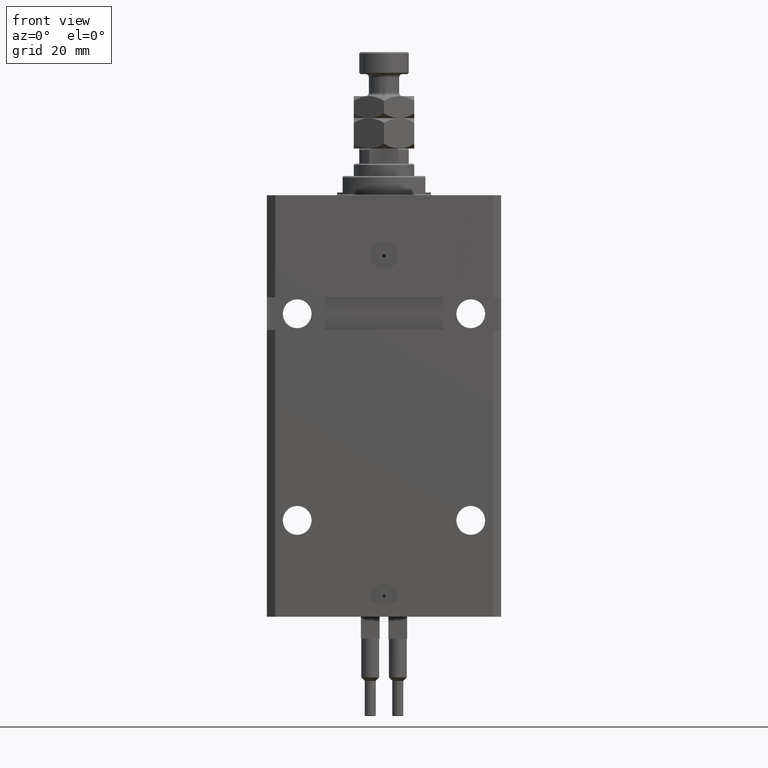
[diagram: clean part render]
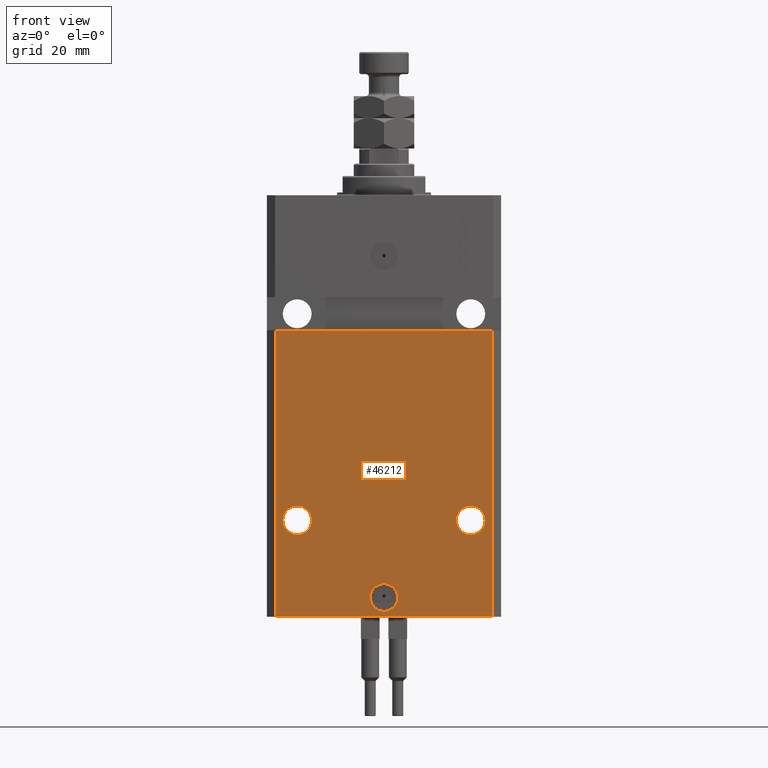
[diagram: same view with one face highlighted and labeled with its STEP entity id]
A machine part, front view. The second image highlights one B-rep face of the part: STEP entity #46212.
In plain terms, the highlighted planar face has unit normal (0, -1, 0).
Its self-contained STEP definition (entity closure, byte-faithful):
#1025 = EDGE_CURVE ( 'NONE', #14641, #39030, #32568, .T. ) ;
#1594 = CIRCLE ( 'NONE', #29347, 5.249999999999997335 ) ;
#1829 = CARTESIAN_POINT ( 'NONE',  ( -26.25000000000001776, -31.50000000000000711, -118.0000000000000000 ) ) ;
#2555 = CARTESIAN_POINT ( 'NONE',  ( -36.75000000000001421, -31.50000000000000711, -118.0000000000000000 ) ) ;
#3582 = FACE_BOUND ( 'NONE', #27794, .T. ) ;
#3829 = DIRECTION ( 'NONE',  ( 0.000000000000000000, -0.000000000000000000, -1.000000000000000000 ) ) ;
#4486 = DIRECTION ( 'NONE',  ( 1.176083712526788232E-16, -1.000000000000000000, 0.000000000000000000 ) ) ;
#4741 = DIRECTION ( 'NONE',  ( -1.000000000000000000, 0.000000000000000000, 0.000000000000000000 ) ) ;
#4793 = EDGE_CURVE ( 'NONE', #38110, #41681, #39795, .T. ) ;
#5434 = DIRECTION ( 'NONE',  ( 1.000000000000000000, 1.632680918566406054E-16, 1.632680918566406054E-16 ) ) ;
#5849 = EDGE_CURVE ( 'NONE', #21984, #23379, #1594, .T. ) ;
#6730 = CIRCLE ( 'NONE', #41842, 5.249999999999997335 ) ;
#7109 = EDGE_CURVE ( 'NONE', #23379, #21984, #7350, .T. ) ;
#7350 = CIRCLE ( 'NONE', #32637, 5.249999999999997335 ) ;
#7641 = ORIENTED_EDGE ( 'NONE', *, *, #1025, .F. ) ;
#7666 = CARTESIAN_POINT ( 'NONE',  ( -39.50000000000000711, -31.50000000000000000, -153.0000000000000000 ) ) ;
#9051 = AXIS2_PLACEMENT_3D ( 'NONE', #7666, #23230, #3829 ) ;
#9541 = VERTEX_POINT ( 'NONE', #15414 ) ;
#10438 = VERTEX_POINT ( 'NONE', #46143 ) ;
#12653 = VECTOR ( 'NONE', #14240, 1000.000000000000000 ) ;
#12969 = CARTESIAN_POINT ( 'NONE',  ( -31.50000000000001421, -31.50000000000000711, -118.0000000000000000 ) ) ;
#13236 = AXIS2_PLACEMENT_3D ( 'NONE', #40712, #32528, #36367 ) ;
#13747 = CARTESIAN_POINT ( 'NONE',  ( -39.50000000000000711, -31.50000000000000000, -153.0000000000000000 ) ) ;
#14240 = DIRECTION ( 'NONE',  ( 1.000000000000000000, 0.000000000000000000, 0.000000000000000000 ) ) ;
#14641 = VERTEX_POINT ( 'NONE', #2555 ) ;
#14895 = DIRECTION ( 'NONE',  ( 0.000000000000000000, 0.000000000000000000, 1.000000000000000000 ) ) ;
#15414 = CARTESIAN_POINT ( 'NONE',  ( 39.50000000000000711, -31.50000000000000000, -153.0000000000000000 ) ) ;
#16012 = CARTESIAN_POINT ( 'NONE',  ( 39.50000000000000000, -31.49999999999999289, -48.99999999999997868 ) ) ;
#16048 = EDGE_CURVE ( 'NONE', #38110, #9541, #48802, .T. ) ;
#16522 = DIRECTION ( 'NONE',  ( 0.000000000000000000, 0.000000000000000000, 1.000000000000000000 ) ) ;
#17214 = CARTESIAN_POINT ( 'NONE',  ( 36.75000000000001421, -31.49999999999999289, -118.0000000000000000 ) ) ;
#18713 = LINE ( 'NONE', #34317, #26015 ) ;
#19149 = FACE_BOUND ( 'NONE', #23483, .T. ) ;
#20503 = LINE ( 'NONE', #33256, #45108 ) ;
#20829 = VERTEX_POINT ( 'NONE', #16012 ) ;
#21763 = EDGE_LOOP ( 'NONE', ( #49418, #7641 ) ) ;
#21984 = VERTEX_POINT ( 'NONE', #17214 ) ;
#23230 = DIRECTION ( 'NONE',  ( 0.000000000000000000, -1.000000000000000000, 0.000000000000000000 ) ) ;
#23379 = VERTEX_POINT ( 'NONE', #34870 ) ;
#23483 = EDGE_LOOP ( 'NONE', ( #35110, #28949 ) ) ;
#24581 = EDGE_CURVE ( 'NONE', #9541, #20829, #18713, .T. ) ;
#26015 = VECTOR ( 'NONE', #14895, 1000.000000000000000 ) ;
#27210 = EDGE_LOOP ( 'NONE', ( #31495, #36556, #39684, #48920 ) ) ;
#27784 = AXIS2_PLACEMENT_3D ( 'NONE', #44893, #33602, #38654 ) ;
#27794 = EDGE_LOOP ( 'NONE', ( #29274, #34084 ) ) ;
#28949 = ORIENTED_EDGE ( 'NONE', *, *, #7109, .F. ) ;
#29274 = ORIENTED_EDGE ( 'NONE', *, *, #30428, .F. ) ;
#29347 = AXIS2_PLACEMENT_3D ( 'NONE', #32735, #36064, #48367 ) ;
#30428 = EDGE_CURVE ( 'NONE', #36002, #10438, #35111, .T. ) ;
#30933 = FACE_OUTER_BOUND ( 'NONE', #27210, .T. ) ;
#31123 = CARTESIAN_POINT ( 'NONE',  ( 31.50000000000001421, -31.49999999999999289, -118.0000000000000000 ) ) ;
#31340 = CARTESIAN_POINT ( 'NONE',  ( -31.50000000000001421, -31.50000000000000711, -118.0000000000000000 ) ) ;
#31364 = DIRECTION ( 'NONE',  ( 1.176083712526788232E-16, -1.000000000000000000, 0.000000000000000000 ) ) ;
#31495 = ORIENTED_EDGE ( 'NONE', *, *, #34273, .F. ) ;
#32154 = DIRECTION ( 'NONE',  ( 1.176083712526788232E-16, -1.000000000000000000, 0.000000000000000000 ) ) ;
#32528 = DIRECTION ( 'NONE',  ( 1.176083712526788232E-16, -1.000000000000000000, 0.000000000000000000 ) ) ;
#32568 = CIRCLE ( 'NONE', #33347, 5.249999999999997335 ) ;
#32637 = AXIS2_PLACEMENT_3D ( 'NONE', #31123, #31364, #46987 ) ;
#32735 = CARTESIAN_POINT ( 'NONE',  ( 31.50000000000001421, -31.49999999999999289, -118.0000000000000000 ) ) ;
#33256 = CARTESIAN_POINT ( 'NONE',  ( -42.50000000000001421, -31.50000000000000711, -48.99999999999999289 ) ) ;
#33347 = AXIS2_PLACEMENT_3D ( 'NONE', #12969, #32154, #43926 ) ;
#33602 = DIRECTION ( 'NONE',  ( 1.176083712526788232E-16, -1.000000000000000000, 0.000000000000000000 ) ) ;
#34084 = ORIENTED_EDGE ( 'NONE', *, *, #34214, .F. ) ;
#34214 = EDGE_CURVE ( 'NONE', #10438, #36002, #50008, .T. ) ;
#34273 = EDGE_CURVE ( 'NONE', #41681, #20829, #20503, .T. ) ;
#34317 = CARTESIAN_POINT ( 'NONE',  ( 39.50000000000000711, -31.50000000000000000, -153.0000000000000000 ) ) ;
#34539 = CARTESIAN_POINT ( 'NONE',  ( 5.000000000000006217, -31.50000000000000000, -146.0000000000000000 ) ) ;
#34742 = FACE_BOUND ( 'NONE', #21763, .T. ) ;
#34747 = EDGE_CURVE ( 'NONE', #39030, #14641, #6730, .T. ) ;
#34870 = CARTESIAN_POINT ( 'NONE',  ( 26.25000000000001776, -31.49999999999999289, -118.0000000000000000 ) ) ;
#35110 = ORIENTED_EDGE ( 'NONE', *, *, #5849, .F. ) ;
#35111 = CIRCLE ( 'NONE', #27784, 5.000000000000006217 ) ;
#36002 = VERTEX_POINT ( 'NONE', #34539 ) ;
#36064 = DIRECTION ( 'NONE',  ( 1.176083712526788232E-16, -1.000000000000000000, 0.000000000000000000 ) ) ;
#36367 = DIRECTION ( 'NONE',  ( 1.000000000000000000, 0.000000000000000000, 0.000000000000000000 ) ) ;
#36556 = ORIENTED_EDGE ( 'NONE', *, *, #4793, .F. ) ;
#38110 = VERTEX_POINT ( 'NONE', #42362 ) ;
#38654 = DIRECTION ( 'NONE',  ( 1.000000000000000000, 0.000000000000000000, 0.000000000000000000 ) ) ;
#38718 = CARTESIAN_POINT ( 'NONE',  ( -39.50000000000000000, -31.50000000000000711, -48.99999999999999289 ) ) ;
#39030 = VERTEX_POINT ( 'NONE', #1829 ) ;
#39684 = ORIENTED_EDGE ( 'NONE', *, *, #16048, .T. ) ;
#39795 = LINE ( 'NONE', #40063, #49696 ) ;
#40063 = CARTESIAN_POINT ( 'NONE',  ( -39.50000000000000711, -31.50000000000000000, -153.0000000000000000 ) ) ;
#40712 = CARTESIAN_POINT ( 'NONE',  ( 0.000000000000000000, -31.50000000000000000, -146.0000000000000000 ) ) ;
#41681 = VERTEX_POINT ( 'NONE', #38718 ) ;
#41842 = AXIS2_PLACEMENT_3D ( 'NONE', #31340, #4486, #4741 ) ;
#42362 = CARTESIAN_POINT ( 'NONE',  ( -39.50000000000000711, -31.50000000000000000, -153.0000000000000000 ) ) ;
#43926 = DIRECTION ( 'NONE',  ( -1.000000000000000000, 0.000000000000000000, 0.000000000000000000 ) ) ;
#44893 = CARTESIAN_POINT ( 'NONE',  ( 0.000000000000000000, -31.50000000000000000, -146.0000000000000000 ) ) ;
#45108 = VECTOR ( 'NONE', #5434, 1000.000000000000000 ) ;
#46143 = CARTESIAN_POINT ( 'NONE',  ( -5.000000000000006217, -31.50000000000000000, -146.0000000000000000 ) ) ;
#46212 = ADVANCED_FACE ( 'NONE', ( #3582, #19149, #34742, #30933 ), #46550, .T. ) ;
#46550 = PLANE ( 'NONE',  #9051 ) ;
#46987 = DIRECTION ( 'NONE',  ( 1.000000000000000000, 0.000000000000000000, 0.000000000000000000 ) ) ;
#48367 = DIRECTION ( 'NONE',  ( 1.000000000000000000, 0.000000000000000000, 0.000000000000000000 ) ) ;
#48802 = LINE ( 'NONE', #13747, #12653 ) ;
#48920 = ORIENTED_EDGE ( 'NONE', *, *, #24581, .T. ) ;
#49418 = ORIENTED_EDGE ( 'NONE', *, *, #34747, .F. ) ;
#49696 = VECTOR ( 'NONE', #16522, 1000.000000000000000 ) ;
#50008 = CIRCLE ( 'NONE', #13236, 5.000000000000006217 ) ;